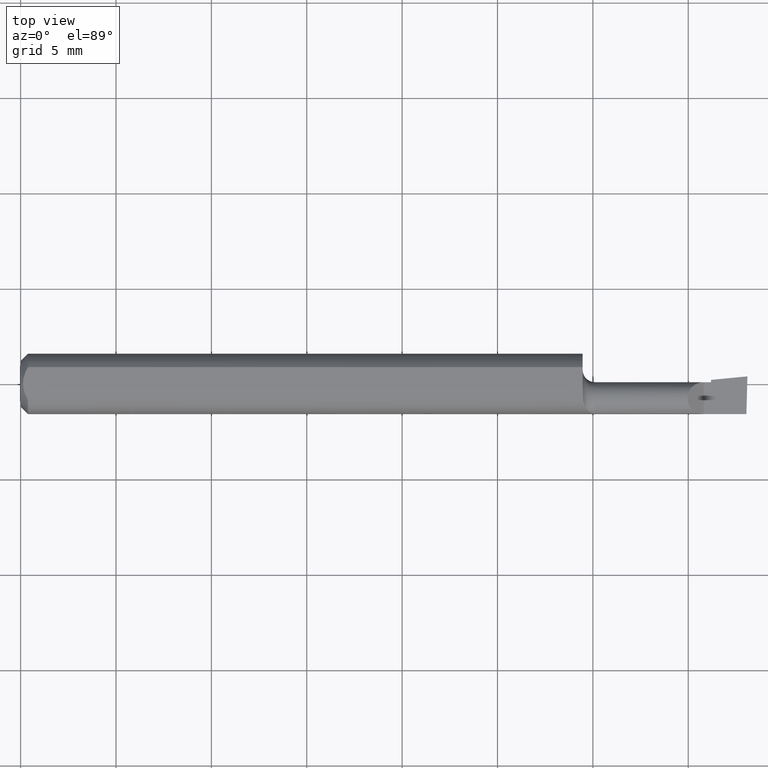
[diagram: clean part render]
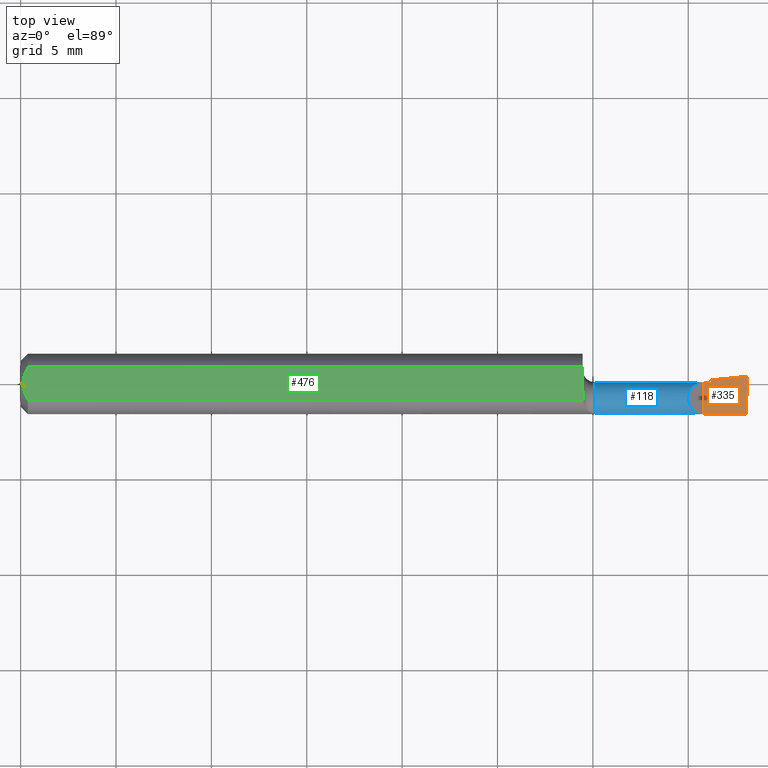
[diagram: same view with three faces highlighted in distinct colors, each labeled with its STEP entity id]
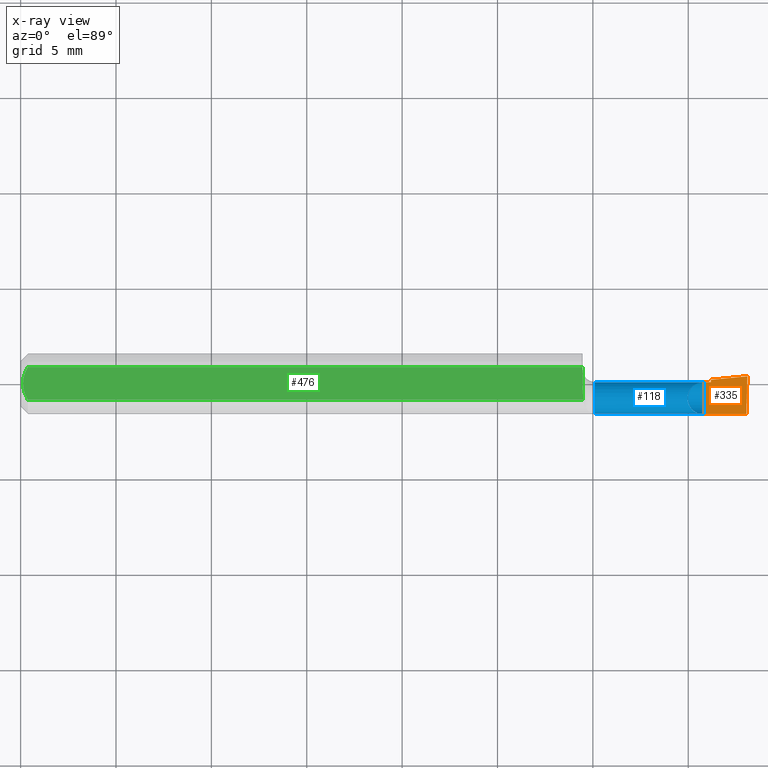
[diagram: x-ray of the same camera — body ghosted, the three highlighted faces saturated]
A machine part, top view with three faces highlighted in distinct colors.
The next image is the same camera in x-ray (body ghosted, the three faces saturated) — at least one of them is partly hidden behind the body in this view.
Their STEP definitions:

[orange] entity #335 — the highlighted planar face has unit normal (-0, 0, -1).
#12 = CARTESIAN_POINT ( 'NONE',  ( 1.409999999999999920, -0.06235000000000005121, 1.102182119232617911E-17 ) ) ;
#32 = VERTEX_POINT ( 'NONE', #301 ) ;
#45 = CARTESIAN_POINT ( 'NONE',  ( 1.500000000000000222, -0.2500000000000000555, 0.0000000000000000000 ) ) ;
#50 = VECTOR ( 'NONE', #189, 39.37007874015748143 ) ;
#54 = LINE ( 'NONE', #513, #510 ) ;
#63 = VERTEX_POINT ( 'NONE', #217 ) ;
#74 = DIRECTION ( 'NONE',  ( 2.845674993400274571E-18, 1.000000000000000000, -3.484946772081307763E-34 ) ) ;
#134 = CARTESIAN_POINT ( 'NONE',  ( 9.575696352794167519E-20, 0.003649999999999986155, 1.836970198721026976E-16 ) ) ;
#137 = EDGE_CURVE ( 'NONE', #406, #416, #210, .T. ) ;
#159 = CARTESIAN_POINT ( 'NONE',  ( 1.409999999999999920, -0.2500000000000000555, 1.102182119232617911E-17 ) ) ;
#174 = CARTESIAN_POINT ( 'NONE',  ( 1.425000000000000266, -0.2500000000000000555, 9.184850993605122553E-18 ) ) ;
#180 = VECTOR ( 'NONE', #562, 39.37007874015748143 ) ;
#189 = DIRECTION ( 'NONE',  ( -0.9953961983671800740, -0.09584575252021024228, 1.242092384877204037E-16 ) ) ;
#210 = LINE ( 'NONE', #364, #50 ) ;
#217 = CARTESIAN_POINT ( 'NONE',  ( 1.409999999999999920, 0.003649999999999939317, 1.102182119232617911E-17 ) ) ;
#225 = EDGE_CURVE ( 'NONE', #63, #32, #472, .T. ) ;
#227 = DIRECTION ( 'NONE',  ( 0.02617694830794552521, 0.9996573249755553725, -3.158139334232501587E-18 ) ) ;
#282 = CARTESIAN_POINT ( 'NONE',  ( 1.497957498117606479, -0.06235000000000005121, 2.590631728435619922E-19 ) ) ;
#294 = VECTOR ( 'NONE', #74, 39.37007874015748143 ) ;
#296 = DIRECTION ( 'NONE',  ( -1.000000000000000000, -0.0000000000000000000, -0.0000000000000000000 ) ) ;
#301 = CARTESIAN_POINT ( 'NONE',  ( 1.425000000000000266, 0.003649999999999999165, 1.836970198721027962E-16 ) ) ;
#313 = EDGE_CURVE ( 'NONE', #409, #406, #459, .T. ) ;
#315 = VERTEX_POINT ( 'NONE', #12 ) ;
#319 = ORIENTED_EDGE ( 'NONE', *, *, #225, .F. ) ;
#326 = DIRECTION ( 'NONE',  ( -1.224646799147351728E-16, 0.0000000000000000000, -1.000000000000000000 ) ) ;
#334 = LINE ( 'NONE', #159, #180 ) ;
#335 = ADVANCED_FACE ( 'NONE', ( #520 ), #456, .F. ) ;
#353 = CARTESIAN_POINT ( 'NONE',  ( 1.425000000000000266, 0.008428321385185622017, 1.835460370743176819E-16 ) ) ;
#364 = CARTESIAN_POINT ( 'NONE',  ( 1.474655795189113938, 0.01320963064143656010, 3.103769929858640237E-18 ) ) ;
#370 = AXIS2_PLACEMENT_3D ( 'NONE', #45, #326, #495 ) ;
#385 = ORIENTED_EDGE ( 'NONE', *, *, #575, .F. ) ;
#388 = VECTOR ( 'NONE', #227, 39.37007874015748143 ) ;
#398 = ORIENTED_EDGE ( 'NONE', *, *, #313, .T. ) ;
#402 = ORIENTED_EDGE ( 'NONE', *, *, #467, .F. ) ;
#406 = VERTEX_POINT ( 'NONE', #454 ) ;
#409 = VERTEX_POINT ( 'NONE', #282 ) ;
#416 = VERTEX_POINT ( 'NONE', #353 ) ;
#454 = CARTESIAN_POINT ( 'NONE',  ( 1.500000000000008660, 0.01565000000000079175, 1.814117808292674686E-16 ) ) ;
#456 = PLANE ( 'NONE',  #370 ) ;
#459 = LINE ( 'NONE', #531, #388 ) ;
#465 = EDGE_LOOP ( 'NONE', ( #556, #398, #534, #402, #319, #385 ) ) ;
#467 = EDGE_CURVE ( 'NONE', #32, #416, #548, .T. ) ;
#472 = LINE ( 'NONE', #134, #538 ) ;
#495 = DIRECTION ( 'NONE',  ( -1.000000000000000000, 0.0000000000000000000, 1.224646799147351728E-16 ) ) ;
#510 = VECTOR ( 'NONE', #296, 39.37007874015748143 ) ;
#513 = CARTESIAN_POINT ( 'NONE',  ( 2.249639673992780117E-32, -0.06234999999999999570, 1.836970198721026976E-16 ) ) ;
#520 = FACE_OUTER_BOUND ( 'NONE', #465, .T. ) ;
#531 = CARTESIAN_POINT ( 'NONE',  ( 1.493048476612020448, -0.2498179679537755049, 8.513160866287269271E-19 ) ) ;
#534 = ORIENTED_EDGE ( 'NONE', *, *, #137, .T. ) ;
#538 = VECTOR ( 'NONE', #580, 39.37007874015748143 ) ;
#545 = EDGE_CURVE ( 'NONE', #409, #315, #54, .T. ) ;
#548 = LINE ( 'NONE', #174, #294 ) ;
#556 = ORIENTED_EDGE ( 'NONE', *, *, #545, .F. ) ;
#562 = DIRECTION ( 'NONE',  ( -0.0000000000000000000, 1.000000000000000000, -0.0000000000000000000 ) ) ;
#575 = EDGE_CURVE ( 'NONE', #315, #63, #334, .T. ) ;
#580 = DIRECTION ( 'NONE',  ( 1.000000000000000000, -2.845674993400274571E-18, 0.0000000000000000000 ) ) ;

[blue] entity #118 — the highlighted cylindrical surface (edge-blend (fillet) strip) has radius 0.8547 mm, axis along (-1, 0, -0).
#1 = CARTESIAN_POINT ( 'NONE',  ( 1.494308349198229857, -0.04386801266094333962, -0.03364999999999998548 ) ) ;
#5 = CARTESIAN_POINT ( 'NONE',  ( 1.353543612694569021, -0.04237893387051760996, 0.05645638730543046241 ) ) ;
#7 = DIRECTION ( 'NONE',  ( -2.845674993400274186E-18, -1.000000000000000000, 0.0000000000000000000 ) ) ;
#11 = CARTESIAN_POINT ( 'NONE',  ( 1.305000000000000160, -0.06092000000000000887, 0.01327690099383130144 ) ) ;
#18 = EDGE_LOOP ( 'NONE', ( #248, #474, #297, #28, #260, #115, #554, #278 ) ) ;
#27 = CARTESIAN_POINT ( 'NONE',  ( 1.185000000000000275, -0.06092000000000005050, 0.01327690099383117134 ) ) ;
#28 = ORIENTED_EDGE ( 'NONE', *, *, #80, .T. ) ;
#30 = CARTESIAN_POINT ( 'NONE',  ( 1.185000000000000275, -0.06092000000000005744, -0.01327690099383113838 ) ) ;
#32 = VERTEX_POINT ( 'NONE', #301 ) ;
#36 = VERTEX_POINT ( 'NONE', #30 ) ;
#37 = AXIS2_PLACEMENT_3D ( 'NONE', #268, #408, #234 ) ;
#48 = DIRECTION ( 'NONE',  ( -1.000000000000000000, 2.845674993400274571E-18, -0.0000000000000000000 ) ) ;
#53 = CARTESIAN_POINT ( 'NONE',  ( 1.425000000000000266, -0.02999999999999999889, -0.03365000000000000629 ) ) ;
#63 = VERTEX_POINT ( 'NONE', #217 ) ;
#68 = VECTOR ( 'NONE', #141, 39.37007874015748143 ) ;
#80 = EDGE_CURVE ( 'NONE', #502, #181, #401, .T. ) ;
#102 = LINE ( 'NONE', #188, #68 ) ;
#103 = CARTESIAN_POINT ( 'NONE',  ( 1.305000000000000160, -0.06092000000000000887, -0.01327690099383130144 ) ) ;
#105 = AXIS2_PLACEMENT_3D ( 'NONE', #541, #276, #7 ) ;
#113 = EDGE_CURVE ( 'NONE', #536, #36, #267, .T. ) ;
#115 = ORIENTED_EDGE ( 'NONE', *, *, #225, .T. ) ;
#118 = ADVANCED_FACE ( 'NONE', ( #253, #242 ), #343, .T. ) ;
#134 = CARTESIAN_POINT ( 'NONE',  ( 9.575696352794167519E-20, 0.003649999999999986155, 1.836970198721026976E-16 ) ) ;
#141 = DIRECTION ( 'NONE',  ( -1.000000000000000000, 5.691349986800550683E-18, -0.0000000000000000000 ) ) ;
#144 = VECTOR ( 'NONE', #48, 39.37007874015748143 ) ;
#152 = CIRCLE ( 'NONE', #37, 0.03364999999999999936 ) ;
#158 = EDGE_CURVE ( 'NONE', #502, #36, #289, .T. ) ;
#163 = VERTEX_POINT ( 'NONE', #323 ) ;
#171 =( BOUNDED_CURVE ( )  B_SPLINE_CURVE ( 3, ( #493, #397, #1, #273 ),
 .UNSPECIFIED., .F., .T. ) 
 B_SPLINE_CURVE_WITH_KNOTS ( ( 4, 4 ),
 ( 5.328025986651551804, 6.493234751460233767 ),
 .UNSPECIFIED. ) 
 CURVE ( )  GEOMETRIC_REPRESENTATION_ITEM ( )  RATIONAL_B_SPLINE_CURVE ( ( 1.000000000000000000, 0.8900217005663151326, 0.8900217005663151326, 1.000000000000000000 ) ) 
 REPRESENTATION_ITEM ( '' )  );
#178 = CARTESIAN_POINT ( 'NONE',  ( 1.409999999999999920, 0.003649999999999939317, 1.102182119232617911E-17 ) ) ;
#181 = VERTEX_POINT ( 'NONE', #183 ) ;
#183 = CARTESIAN_POINT ( 'NONE',  ( 1.396723099006168534, -0.06092000000000002274, 0.01327690099383125981 ) ) ;
#188 = CARTESIAN_POINT ( 'NONE',  ( 1.500000000000000444, -0.02999999999999999889, -0.03365000000000000629 ) ) ;
#191 =( BOUNDED_CURVE ( )  B_SPLINE_CURVE ( 3, ( #368, #237, #365, #280 ),
 .UNSPECIFIED., .F., .F. ) 
 B_SPLINE_CURVE_WITH_KNOTS ( ( 4, 4 ),
 ( 3.087527693676604734, 3.186434404596866443 ),
 .UNSPECIFIED. ) 
 CURVE ( )  GEOMETRIC_REPRESENTATION_ITEM ( )  RATIONAL_B_SPLINE_CURVE ( ( 1.000000000000000000, 0.9991849546734636878, 0.9991849546734636878, 1.000000000000000000 ) ) 
 REPRESENTATION_ITEM ( '' )  );
#201 = VERTEX_POINT ( 'NONE', #448 ) ;
#217 = CARTESIAN_POINT ( 'NONE',  ( 1.409999999999999920, 0.003649999999999939317, 1.102182119232617911E-17 ) ) ;
#225 = EDGE_CURVE ( 'NONE', #63, #32, #472, .T. ) ;
#234 = DIRECTION ( 'NONE',  ( 0.0000000000000000000, -1.000000000000000000, 0.0000000000000000000 ) ) ;
#236 = EDGE_CURVE ( 'NONE', #536, #163, #171, .T. ) ;
#237 = CARTESIAN_POINT ( 'NONE',  ( 1.423453955186838593, -0.005345927311154197344, -0.02292882422404297557 ) ) ;
#242 = FACE_BOUND ( 'NONE', #344, .T. ) ;
#248 = ORIENTED_EDGE ( 'NONE', *, *, #236, .F. ) ;
#253 = FACE_OUTER_BOUND ( 'NONE', #18, .T. ) ;
#256 = CARTESIAN_POINT ( 'NONE',  ( 1.422660134122533782, -0.005345630279323854497, -0.02292848294241282142 ) ) ;
#260 = ORIENTED_EDGE ( 'NONE', *, *, #281, .T. ) ;
#262 = VERTEX_POINT ( 'NONE', #443 ) ;
#267 = LINE ( 'NONE', #103, #144 ) ;
#268 = CARTESIAN_POINT ( 'NONE',  ( 1.425000000000000266, -0.02999999999999999889, 0.0000000000000000000 ) ) ;
#273 = CARTESIAN_POINT ( 'NONE',  ( 1.494671495890090407, -0.02999999999999999889, -0.03365000000000000629 ) ) ;
#276 = DIRECTION ( 'NONE',  ( -1.000000000000000000, 2.845674993400274571E-18, -0.0000000000000000000 ) ) ;
#278 = ORIENTED_EDGE ( 'NONE', *, *, #410, .F. ) ;
#280 = CARTESIAN_POINT ( 'NONE',  ( 1.422808130611181499, -0.006922796484203535931, -0.02449010367251438017 ) ) ;
#281 = EDGE_CURVE ( 'NONE', #181, #63, #357, .T. ) ;
#285 = EDGE_CURVE ( 'NONE', #32, #387, #152, .T. ) ;
#289 = CIRCLE ( 'NONE', #527, 0.03364999999999996466 ) ;
#297 = ORIENTED_EDGE ( 'NONE', *, *, #158, .F. ) ;
#301 = CARTESIAN_POINT ( 'NONE',  ( 1.425000000000000266, 0.003649999999999999165, 1.836970198721027962E-16 ) ) ;
#306 = CARTESIAN_POINT ( 'NONE',  ( 1.422734132366858306, -0.006115384616088472523, -0.02372927357351938341 ) ) ;
#320 = CARTESIAN_POINT ( 'NONE',  ( 1.185000000000000275, -0.02999999999999999889, 0.0000000000000000000 ) ) ;
#323 = CARTESIAN_POINT ( 'NONE',  ( 1.494671495890090407, -0.02999999999999999889, -0.03365000000000000629 ) ) ;
#327 = EDGE_CURVE ( 'NONE', #262, #201, #191, .T. ) ;
#343 = CYLINDRICAL_SURFACE ( 'NONE', #105, 0.03364999999999998548 ) ;
#344 = EDGE_LOOP ( 'NONE', ( #426, #533 ) ) ;
#357 =( BOUNDED_CURVE ( )  B_SPLINE_CURVE ( 3, ( #542, #5, #395, #178 ),
 .UNSPECIFIED., .F., .F. ) 
 B_SPLINE_CURVE_WITH_KNOTS ( ( 4, 4 ),
 ( 5.117976542370903381, 7.853981633974482790 ),
 .UNSPECIFIED. ) 
 CURVE ( )  GEOMETRIC_REPRESENTATION_ITEM ( )  RATIONAL_B_SPLINE_CURVE ( ( 1.000000000000000000, 0.4676044288551171602, 0.4676044288551171602, 1.000000000000000000 ) ) 
 REPRESENTATION_ITEM ( '' )  );
#359 = VECTOR ( 'NONE', #549, 39.37007874015748143 ) ;
#365 = CARTESIAN_POINT ( 'NONE',  ( 1.423528013792283220, -0.006115055335901372138, -0.02372896329039469662 ) ) ;
#368 = CARTESIAN_POINT ( 'NONE',  ( 1.422586135878207481, -0.004617293032568151046, -0.02209164292227893886 ) ) ;
#387 = VERTEX_POINT ( 'NONE', #53 ) ;
#395 = CARTESIAN_POINT ( 'NONE',  ( 1.363008094618844535, 0.003649999999999983553, 0.04699190538115492755 ) ) ;
#397 = CARTESIAN_POINT ( 'NONE',  ( 1.494942300338901742, -0.05544825464842365048, -0.02601981188465950917 ) ) ;
#401 = LINE ( 'NONE', #11, #359 ) ;
#408 = DIRECTION ( 'NONE',  ( -1.000000000000000000, 2.845674993400274571E-18, -0.0000000000000000000 ) ) ;
#410 = EDGE_CURVE ( 'NONE', #163, #387, #102, .T. ) ;
#415 = B_SPLINE_CURVE_WITH_KNOTS ( 'NONE', 3,
 ( #437, #256, #306, #440 ),
 .UNSPECIFIED., .F., .F.,
 ( 4, 4 ),
 ( 0.0000000000000000000, 1.000000000000000000 ),
 .UNSPECIFIED. ) ;
#426 = ORIENTED_EDGE ( 'NONE', *, *, #327, .F. ) ;
#437 = CARTESIAN_POINT ( 'NONE',  ( 1.422586135878207481, -0.004617293032568151046, -0.02209164292227893886 ) ) ;
#440 = CARTESIAN_POINT ( 'NONE',  ( 1.422808130611181499, -0.006922796484203535931, -0.02449010367251438017 ) ) ;
#443 = CARTESIAN_POINT ( 'NONE',  ( 1.422586135878207481, -0.004617293032568151046, -0.02209164292227893886 ) ) ;
#448 = CARTESIAN_POINT ( 'NONE',  ( 1.422808130611181499, -0.006922796484203535931, -0.02449010367251438017 ) ) ;
#453 = DIRECTION ( 'NONE',  ( 0.0000000000000000000, -1.000000000000000000, 0.0000000000000000000 ) ) ;
#460 = DIRECTION ( 'NONE',  ( -1.000000000000000000, 2.845674993400274571E-18, -0.0000000000000000000 ) ) ;
#472 = LINE ( 'NONE', #134, #538 ) ;
#474 = ORIENTED_EDGE ( 'NONE', *, *, #113, .T. ) ;
#486 = EDGE_CURVE ( 'NONE', #262, #201, #415, .T. ) ;
#493 = CARTESIAN_POINT ( 'NONE',  ( 1.496364186706980792, -0.06092000000000000887, -0.01327690099383130144 ) ) ;
#502 = VERTEX_POINT ( 'NONE', #27 ) ;
#527 = AXIS2_PLACEMENT_3D ( 'NONE', #320, #460, #453 ) ;
#533 = ORIENTED_EDGE ( 'NONE', *, *, #486, .T. ) ;
#536 = VERTEX_POINT ( 'NONE', #557 ) ;
#538 = VECTOR ( 'NONE', #580, 39.37007874015748143 ) ;
#541 = CARTESIAN_POINT ( 'NONE',  ( 0.0000000000000000000, -0.02999999999999999542, 0.0000000000000000000 ) ) ;
#542 = CARTESIAN_POINT ( 'NONE',  ( 1.396723099006168534, -0.06092000000000002274, 0.01327690099383125981 ) ) ;
#549 = DIRECTION ( 'NONE',  ( 1.000000000000000000, -2.845674993400274571E-18, 0.0000000000000000000 ) ) ;
#554 = ORIENTED_EDGE ( 'NONE', *, *, #285, .T. ) ;
#557 = CARTESIAN_POINT ( 'NONE',  ( 1.496364186706980792, -0.06092000000000000887, -0.01327690099383130144 ) ) ;
#580 = DIRECTION ( 'NONE',  ( 1.000000000000000000, -2.845674993400274571E-18, 0.0000000000000000000 ) ) ;

[green] entity #476 — the highlighted planar face has unit normal (0, -0, -1).
#4 = CARTESIAN_POINT ( 'NONE',  ( 0.004999999999999268051, 0.005945714695019511074, 0.05235000000000000070 ) ) ;
#6 = VERTEX_POINT ( 'NONE', #537 ) ;
#13 = EDGE_CURVE ( 'NONE', #6, #77, #555, .T. ) ;
#33 = CARTESIAN_POINT ( 'NONE',  ( 1.500000000000000222, 0.1123499999999999915, 0.05234999999999998682 ) ) ;
#35 = DIRECTION ( 'NONE',  ( -2.845674993400274571E-18, -1.000000000000000000, 7.598598113218357399E-17 ) ) ;
#51 = CARTESIAN_POINT ( 'NONE',  ( 0.01500000000000185213, -0.03386738844380016850, 0.05235000000000000070 ) ) ;
#52 = EDGE_CURVE ( 'NONE', #331, #169, #419, .T. ) ;
#67 = EDGE_CURVE ( 'NONE', #77, #331, #517, .T. ) ;
#77 = VERTEX_POINT ( 'NONE', #279 ) ;
#82 = CARTESIAN_POINT ( 'NONE',  ( 1.160303160474311257, -0.01365768250280463558, 0.05235000000000000764 ) ) ;
#84 = VERTEX_POINT ( 'NONE', #373 ) ;
#85 = VECTOR ( 'NONE', #35, 39.37007874015748143 ) ;
#131 = EDGE_LOOP ( 'NONE', ( #392, #572, #524, #553, #154, #226 ) ) ;
#133 = AXIS2_PLACEMENT_3D ( 'NONE', #33, #384, #390 ) ;
#136 = CARTESIAN_POINT ( 'NONE',  ( 0.0000000000000000000, 0.03386738844375223462, 0.05234999999999997988 ) ) ;
#145 = CARTESIAN_POINT ( 'NONE',  ( 0.0000000000000000000, -0.03386738844375222768, 0.05234999999999997988 ) ) ;
#149 = B_SPLINE_CURVE_WITH_KNOTS ( 'NONE', 3,
 ( #321, #4, #576, #530, #466, #560 ),
 .UNSPECIFIED., .F., .F.,
 ( 4, 2, 4 ),
 ( 0.003037199019464981685, 0.003488061124369676216, 0.003938923229274370746 ),
 .UNSPECIFIED. ) ;
#153 = EDGE_CURVE ( 'NONE', #169, #84, #149, .T. ) ;
#154 = ORIENTED_EDGE ( 'NONE', *, *, #52, .F. ) ;
#169 = VERTEX_POINT ( 'NONE', #284 ) ;
#199 = VECTOR ( 'NONE', #451, 39.37007874015748143 ) ;
#204 = LINE ( 'NONE', #573, #85 ) ;
#214 = CARTESIAN_POINT ( 'NONE',  ( 0.01500000000000185213, -0.03386738844380016850, 0.05235000000000000070 ) ) ;
#221 = CARTESIAN_POINT ( 'NONE',  ( 1.160864870788666181, -0.02880649294741972899, 0.05235000000000000070 ) ) ;
#224 = CARTESIAN_POINT ( 'NONE',  ( 1.160746490741564108, -0.02375524936241532603, 0.05235000000000000764 ) ) ;
#226 = ORIENTED_EDGE ( 'NONE', *, *, #67, .F. ) ;
#241 = DIRECTION ( 'NONE',  ( -1.000000000000000000, -0.0000000000000000000, -0.0000000000000000000 ) ) ;
#258 = CARTESIAN_POINT ( 'NONE',  ( 0.01216137397042175820, -0.02864146636719541034, 0.05235000000000000070 ) ) ;
#261 = PLANE ( 'NONE',  #133 ) ;
#272 = CARTESIAN_POINT ( 'NONE',  ( 1.160000000000000586, -0.008611455327202394150, 0.05235000000000001458 ) ) ;
#279 = CARTESIAN_POINT ( 'NONE',  ( 1.160770118751884405, -0.03386738844373782253, 0.05235000000000000070 ) ) ;
#284 = CARTESIAN_POINT ( 'NONE',  ( 0.004999999999989931769, 7.898418181085889318E-16, 0.05235000000000000070 ) ) ;
#305 = CARTESIAN_POINT ( 'NONE',  ( 0.004999999999989931769, 7.898418181085889318E-16, 0.05235000000000000070 ) ) ;
#309 = FACE_OUTER_BOUND ( 'NONE', #131, .T. ) ;
#311 = CARTESIAN_POINT ( 'NONE',  ( 1.160770118751884405, -0.03386738844373782253, 0.05235000000000000070 ) ) ;
#321 = CARTESIAN_POINT ( 'NONE',  ( 0.004999999999989931769, 7.898418181085889318E-16, 0.05235000000000000070 ) ) ;
#331 = VERTEX_POINT ( 'NONE', #51 ) ;
#351 = CARTESIAN_POINT ( 'NONE',  ( 1.160000000000000142, 0.03386738844375224156, 0.05235000000000000070 ) ) ;
#372 = EDGE_CURVE ( 'NONE', #84, #457, #567, .T. ) ;
#373 = CARTESIAN_POINT ( 'NONE',  ( 0.01500000000000000465, 0.03386738844375223462, 0.05234999999999997988 ) ) ;
#384 = DIRECTION ( 'NONE',  ( 0.0000000000000000000, -7.598598113218357399E-17, -1.000000000000000000 ) ) ;
#390 = DIRECTION ( 'NONE',  ( 0.0000000000000000000, 1.000000000000000000, -7.598598113218357399E-17 ) ) ;
#392 = ORIENTED_EDGE ( 'NONE', *, *, #13, .F. ) ;
#419 = B_SPLINE_CURVE_WITH_KNOTS ( 'NONE', 3,
 ( #214, #258, #433, #485, #435, #305 ),
 .UNSPECIFIED., .F., .F.,
 ( 4, 2, 4 ),
 ( 0.002133667072902290657, 0.002585433046183636171, 0.003037199019464981685 ),
 .UNSPECIFIED. ) ;
#433 = CARTESIAN_POINT ( 'NONE',  ( 0.009678036133109307534, -0.02325481837211496039, 0.05235000000000000070 ) ) ;
#435 = CARTESIAN_POINT ( 'NONE',  ( 0.004999999999998879473, -0.005957634400466955450, 0.05235000000000000070 ) ) ;
#451 = DIRECTION ( 'NONE',  ( 1.000000000000000000, 0.0000000000000000000, 0.0000000000000000000 ) ) ;
#455 = EDGE_CURVE ( 'NONE', #457, #6, #204, .T. ) ;
#457 = VERTEX_POINT ( 'NONE', #351 ) ;
#466 = CARTESIAN_POINT ( 'NONE',  ( 0.01218518006020415795, 0.02868529347538067639, 0.05235000000000000070 ) ) ;
#470 = VECTOR ( 'NONE', #241, 39.37007874015748143 ) ;
#476 = ADVANCED_FACE ( 'NONE', ( #309 ), #261, .F. ) ;
#485 = CARTESIAN_POINT ( 'NONE',  ( 0.006057557792978140489, -0.01187252718384441616, 0.05234999999999998682 ) ) ;
#490 = CARTESIAN_POINT ( 'NONE',  ( 1.160000000000000142, -0.003555718954753251532, 0.05235000000000000070 ) ) ;
#517 = LINE ( 'NONE', #145, #470 ) ;
#524 = ORIENTED_EDGE ( 'NONE', *, *, #372, .F. ) ;
#530 = CARTESIAN_POINT ( 'NONE',  ( 0.009669996313769784607, 0.02323004575534281385, 0.05234999999999998682 ) ) ;
#537 = CARTESIAN_POINT ( 'NONE',  ( 1.160000000000000142, -0.003555718954753251532, 0.05235000000000000070 ) ) ;
#553 = ORIENTED_EDGE ( 'NONE', *, *, #153, .F. ) ;
#555 = B_SPLINE_CURVE_WITH_KNOTS ( 'NONE', 3,
 ( #490, #272, #82, #224, #221, #311 ),
 .UNSPECIFIED., .F., .F.,
 ( 4, 2, 4 ),
 ( 2.951825381264272150E-05, 0.0004145759864934279960, 0.0007996337191742131350 ),
 .UNSPECIFIED. ) ;
#560 = CARTESIAN_POINT ( 'NONE',  ( 0.01500000000000000465, 0.03386738844375223462, 0.05234999999999997988 ) ) ;
#567 = LINE ( 'NONE', #136, #199 ) ;
#572 = ORIENTED_EDGE ( 'NONE', *, *, #455, .F. ) ;
#573 = CARTESIAN_POINT ( 'NONE',  ( 1.160000000000000142, 0.1123499999999999915, 0.05234999999999998682 ) ) ;
#576 = CARTESIAN_POINT ( 'NONE',  ( 0.006064493299689842180, 0.01189382783781397189, 0.05235000000000000070 ) ) ;